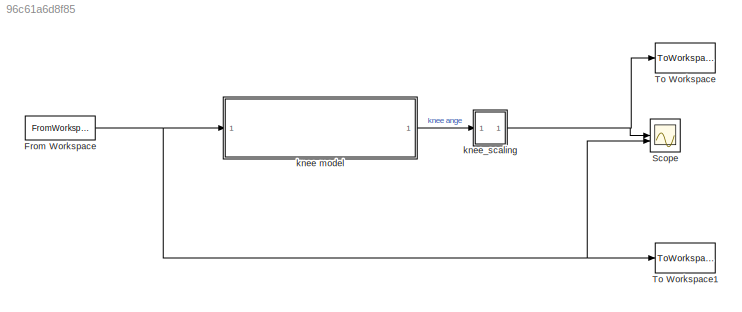
MODEL mdl_96c61a6d8f85
KIND model
CONFIG AbsTol = 1e-6
CONFIG EnableMultiTasking = off
CONFIG FixedStep = auto
CONFIG MaxStep = auto
CONFIG MinStep = auto
CONFIG RelTol = 1e-3
CONFIG SampleTimeConstraint = Unconstrained
CONFIG SolverName = ode45
CONFIG StartTime = 0.0
CONFIG StopTime = 100
BLOCK [FromWorkspace] From Workspace
  Interpolate = off
  OutputAfterFinalValue = Setting to zero
  SampleTime = 0.05
  VariableName = input
  ZeroCross = off
BLOCK [Scope] Scope
  Floating = off
  NumInputPorts = 2
  ScopeSpecificationString = Simulink.scopes.TimeScopeBlockCfg('CurrentConfiguration', extmgr.ConfigurationSet(extmgr.Configuration('Core','General UI',true),extmgr.Configuration('Core','Source UI',true),extmgr.Configuration('Sources','WiredSimulink',true,'DataLoggingSaveFormat','StructureWithTime','DataLoggingDecimation','1','DataLoggingDecimateData',true,'DataLogging',true,'DataLoggingVariableName','simulazione'),extmgr.Con...<+2499ch>
BLOCK [ToWorkspace] To Workspace
  MaxDataPoints = inf
  SampleTime = 0.05
  VariableName = y
BLOCK [ToWorkspace] To Workspace1
  MaxDataPoints = inf
  SampleTime = 0.05
  VariableName = u
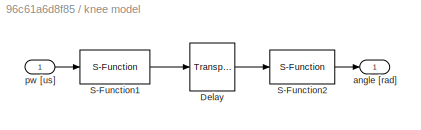
BLOCK [SubSystem] knee model
BLOCK [TransportDelay] knee model/Delay
  DelayTime = 0.025
  InitialOutput = act0(1:2:17)
BLOCK [S-Function] knee model/S-Function1
  EnableBusSupport = off
  FunctionName = act_dyn
  Parameters = act0,freq,A,B
  SFcnIsStateOwnerBlock = off
  SFunctionDeploymentMode = off
BLOCK [S-Function] knee model/S-Function2
  EnableBusSupport = off
  FunctionName = con_dyn
  Parameters = qk0
  SFcnIsStateOwnerBlock = off
  SFunctionDeploymentMode = off
BLOCK [Outport] knee model/angle [rad]
  InitialOutput = 0
BLOCK [Inport] knee model/pw [us]
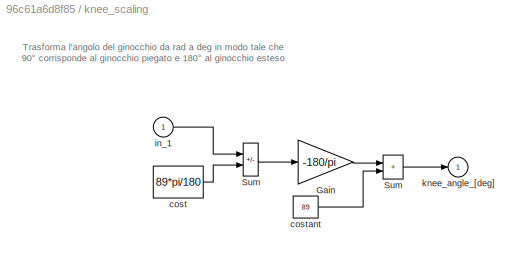
BLOCK [SubSystem] knee_scaling
  ShowPortLabels = none
BLOCK [Gain] knee_scaling/Gain
  Gain = -180/pi
  OutDataTypeStr = Inherit: Same as input
  ParamDataTypeStr = Inherit: Same as input
  SaturateOnIntegerOverflow = on
BLOCK [Sum] knee_scaling/Sum 
  IconShape = rectangular
  InputSameDT = on
  OutDataTypeStr = Inherit: Same as first input
  SaturateOnIntegerOverflow = on
BLOCK [Constant] knee_scaling/cost
  Value = 89*pi/180
BLOCK [Constant] knee_scaling/costant 
  Value = 89
BLOCK [Inport] knee_scaling/in_1
BLOCK [Outport] knee_scaling/knee_angle_[deg]
  InitialOutput = 0
ANNOTATION knee_scaling: Trasforma l'angolo del ginocchio da rad a deg in modo tale che 90° corrisponde al ginocchio piegato e 180° al ginocchio esteso
NET From Workspace:1 -> Scope:2, To Workspace1:1, knee model:1
LINE knee model/Delay:1 -> knee model/S-Function2:1
LINE knee model/S-Function1:1 -> knee model/Delay:1
LINE knee model/S-Function2:1 -> knee model/angle [rad]:1
LINE knee model/pw [us]:1 -> knee model/S-Function1:1
LINE knee model:1 -> knee_scaling:1
LINE knee_scaling/Gain:1 -> knee_scaling/Sum :1
NET knee_scaling/Sum :1 -> knee_scaling/Gain:1, knee_scaling/knee_angle_[deg]:1
LINE knee_scaling/cost:1 -> knee_scaling/Sum :2
LINE knee_scaling/costant :1 -> knee_scaling/Sum :2
LINE knee_scaling/in_1:1 -> knee_scaling/Sum :1
NET knee_scaling:1 -> Scope:1, To Workspace:1
note: NET lines group one-source signal fan-out (src -> all destinations, sorted); 1:1 wires keep LINE
